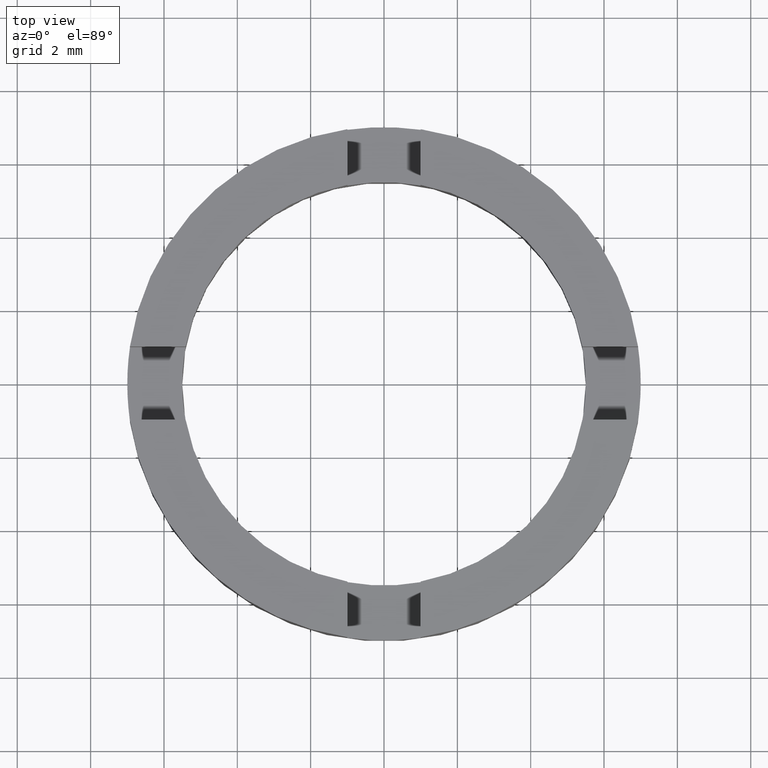
[diagram: clean part render]
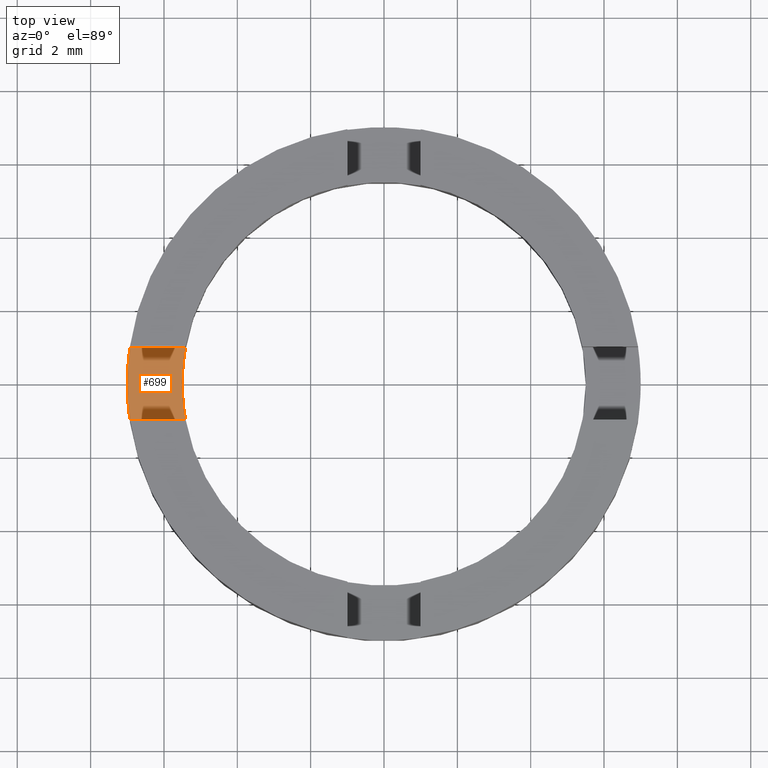
[diagram: same view with one face highlighted and labeled with its STEP entity id]
A machine part, top view. The second image highlights one B-rep face of the part: STEP entity #699.
In plain terms, the highlighted planar face has unit normal (-0, 0, 1).
Its self-contained STEP definition (entity closure, byte-faithful):
#18 = DIRECTION ( 'NONE',  ( 1.000000000000000000, 0.000000000000000000, 0.000000000000000000 ) ) ;
#30 = CARTESIAN_POINT ( 'NONE',  ( 0.000000000000000000, 0.000000000000000000, 1.500000000000000000 ) ) ;
#51 = AXIS2_PLACEMENT_3D ( 'NONE', #333, #264, #125 ) ;
#104 = CARTESIAN_POINT ( 'NONE',  ( 3.748241796307024994E-15, 0.9999999999999988898, 1.500000000000000000 ) ) ;
#112 = ORIENTED_EDGE ( 'NONE', *, *, #464, .T. ) ;
#114 = VERTEX_POINT ( 'NONE', #753 ) ;
#121 = EDGE_LOOP ( 'NONE', ( #676, #383, #465, #360, #197, #112 ) ) ;
#125 = DIRECTION ( 'NONE',  ( 1.000000000000000000, 7.105427357601001859E-15, 0.000000000000000000 ) ) ;
#132 = AXIS2_PLACEMENT_3D ( 'NONE', #571, #259, #18 ) ;
#136 = DIRECTION ( 'NONE',  ( -0.000000000000000000, 0.000000000000000000, 1.000000000000000000 ) ) ;
#155 = EDGE_CURVE ( 'NONE', #114, #683, #312, .T. ) ;
#174 = CARTESIAN_POINT ( 'NONE',  ( -5.500000000000000000, 0.000000000000000000, 1.500000000000000000 ) ) ;
#183 = AXIS2_PLACEMENT_3D ( 'NONE', #30, #136, #735 ) ;
#185 = PLANE ( 'NONE',  #448 ) ;
#197 = ORIENTED_EDGE ( 'NONE', *, *, #598, .T. ) ;
#230 = VECTOR ( 'NONE', #608, 1000.000000000000000 ) ;
#242 = LINE ( 'NONE', #104, #477 ) ;
#259 = DIRECTION ( 'NONE',  ( 0.000000000000000000, -0.000000000000000000, -1.000000000000000000 ) ) ;
#264 = DIRECTION ( 'NONE',  ( 0.000000000000000000, -0.000000000000000000, -1.000000000000000000 ) ) ;
#267 = CARTESIAN_POINT ( 'NONE',  ( 0.000000000000000000, 0.000000000000000000, 1.500000000000000000 ) ) ;
#312 = CIRCLE ( 'NONE', #183, 7.000000000000000000 ) ;
#331 = DIRECTION ( 'NONE',  ( -0.000000000000000000, 0.000000000000000000, 1.000000000000000000 ) ) ;
#333 = CARTESIAN_POINT ( 'NONE',  ( 0.000000000000000000, 0.000000000000000000, 1.500000000000000000 ) ) ;
#352 = DIRECTION ( 'NONE',  ( 1.000000000000000000, -3.748241796307028939E-15, 0.000000000000000000 ) ) ;
#356 = CARTESIAN_POINT ( 'NONE',  ( -5.408326913195987018, -0.9999999999999813483, 1.500000000000000000 ) ) ;
#360 = ORIENTED_EDGE ( 'NONE', *, *, #780, .T. ) ;
#381 = CARTESIAN_POINT ( 'NONE',  ( -7.000000000000000000, 0.000000000000000000, 1.500000000000000000 ) ) ;
#383 = ORIENTED_EDGE ( 'NONE', *, *, #155, .T. ) ;
#393 = VERTEX_POINT ( 'NONE', #174 ) ;
#421 = VERTEX_POINT ( 'NONE', #701 ) ;
#436 = DIRECTION ( 'NONE',  ( 1.000000000000000000, 0.000000000000000000, 0.000000000000000000 ) ) ;
#448 = AXIS2_PLACEMENT_3D ( 'NONE', #267, #331, #436 ) ;
#449 = EDGE_CURVE ( 'NONE', #114, #421, #242, .T. ) ;
#464 = EDGE_CURVE ( 'NONE', #393, #421, #744, .T. ) ;
#465 = ORIENTED_EDGE ( 'NONE', *, *, #669, .T. ) ;
#474 = CIRCLE ( 'NONE', #678, 7.000000000000000000 ) ;
#477 = VECTOR ( 'NONE', #352, 1000.000000000000000 ) ;
#480 = FACE_OUTER_BOUND ( 'NONE', #121, .T. ) ;
#571 = CARTESIAN_POINT ( 'NONE',  ( 0.000000000000000000, 0.000000000000000000, 1.500000000000000000 ) ) ;
#573 = CARTESIAN_POINT ( 'NONE',  ( 0.000000000000000000, 0.000000000000000000, 1.500000000000000000 ) ) ;
#588 = CARTESIAN_POINT ( 'NONE',  ( -3.732753193842954812E-15, -1.000000000000001332, 1.500000000000000000 ) ) ;
#598 = EDGE_CURVE ( 'NONE', #688, #393, #748, .T. ) ;
#603 = CARTESIAN_POINT ( 'NONE',  ( -6.928203230275513214, -0.9999999999999754641, 1.500000000000000000 ) ) ;
#605 = DIRECTION ( 'NONE',  ( -0.000000000000000000, 0.000000000000000000, 1.000000000000000000 ) ) ;
#607 = DIRECTION ( 'NONE',  ( 1.000000000000000000, 0.000000000000000000, 0.000000000000000000 ) ) ;
#608 = DIRECTION ( 'NONE',  ( 1.000000000000000000, -3.732753193842950078E-15, 0.000000000000000000 ) ) ;
#669 = EDGE_CURVE ( 'NONE', #683, #684, #474, .T. ) ;
#676 = ORIENTED_EDGE ( 'NONE', *, *, #449, .F. ) ;
#678 = AXIS2_PLACEMENT_3D ( 'NONE', #573, #605, #607 ) ;
#683 = VERTEX_POINT ( 'NONE', #381 ) ;
#684 = VERTEX_POINT ( 'NONE', #603 ) ;
#688 = VERTEX_POINT ( 'NONE', #356 ) ;
#699 = ADVANCED_FACE ( 'NONE', ( #480 ), #185, .T. ) ;
#701 = CARTESIAN_POINT ( 'NONE',  ( -5.408326913195980801, 1.000000000000019096, 1.500000000000000000 ) ) ;
#735 = DIRECTION ( 'NONE',  ( 1.000000000000000000, 0.000000000000000000, 0.000000000000000000 ) ) ;
#744 = CIRCLE ( 'NONE', #132, 5.500000000000000000 ) ;
#748 = CIRCLE ( 'NONE', #51, 5.500000000000000000 ) ;
#753 = CARTESIAN_POINT ( 'NONE',  ( -6.928203230275506108, 1.000000000000024869, 1.500000000000000000 ) ) ;
#763 = LINE ( 'NONE', #588, #230 ) ;
#780 = EDGE_CURVE ( 'NONE', #684, #688, #763, .T. ) ;